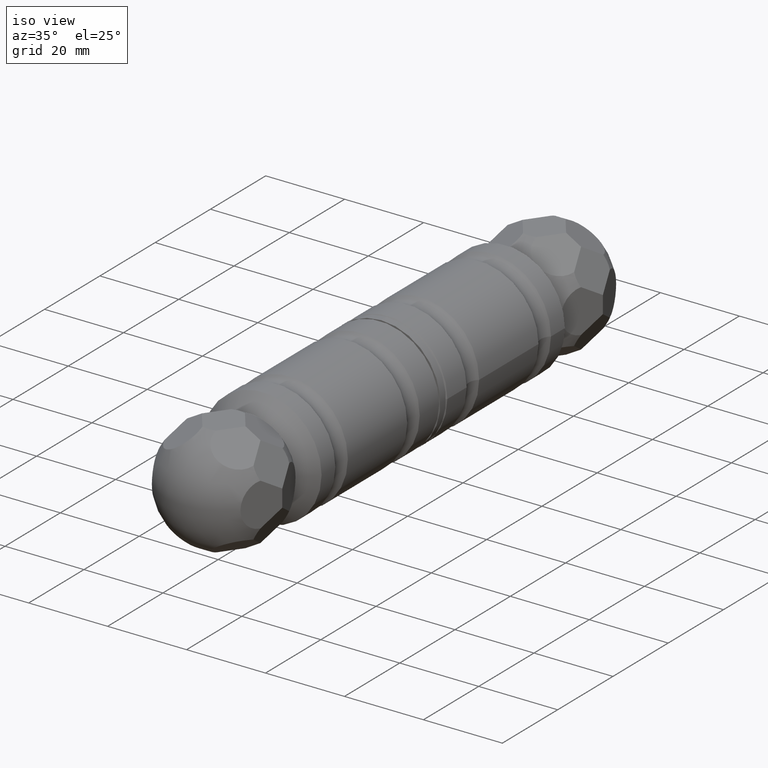
[diagram: clean part render]
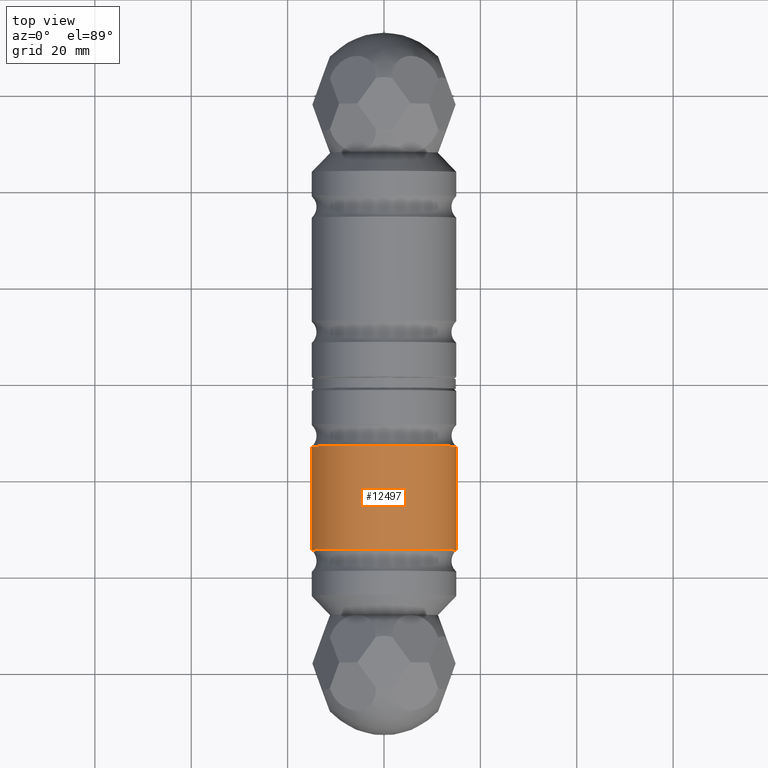
[diagram: tour spotlight — one face highlighted and labeled with its STEP entity id]
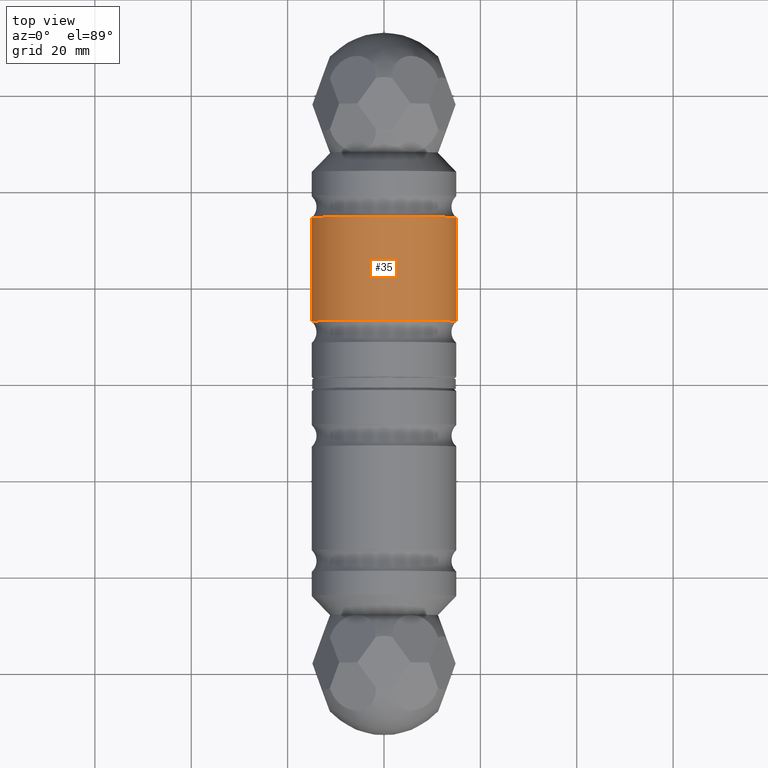
[diagram: tour spotlight — one face highlighted and labeled with its STEP entity id]
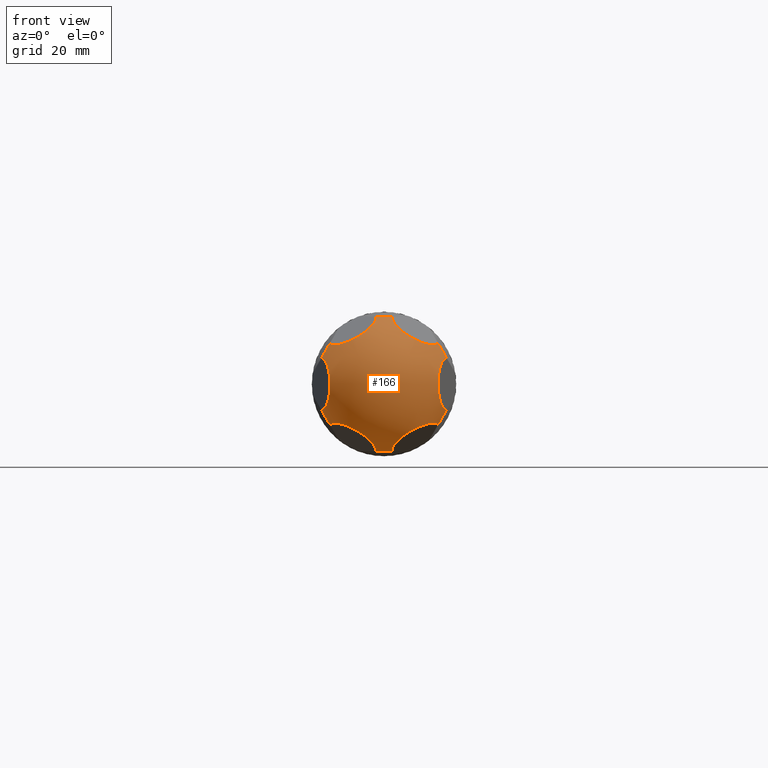
[diagram: tour spotlight — one face highlighted and labeled with its STEP entity id]
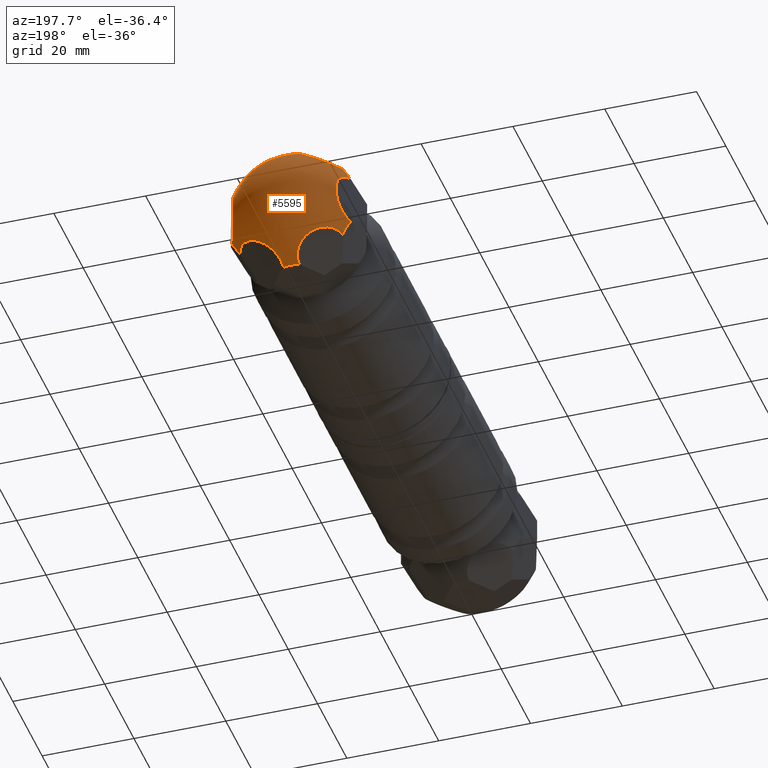
[diagram: tour spotlight — one face highlighted and labeled with its STEP entity id]
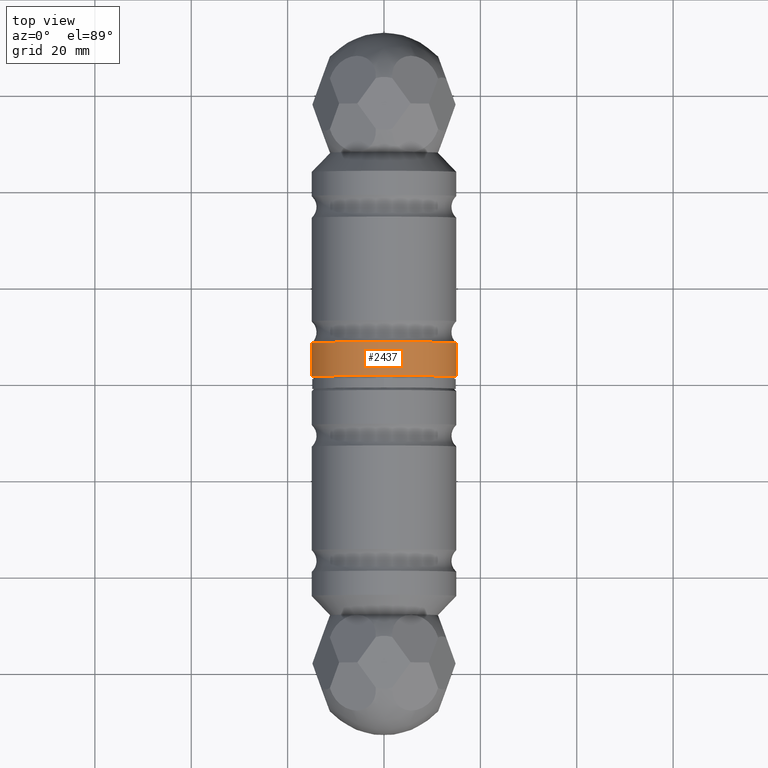
[diagram: tour spotlight — one face highlighted and labeled with its STEP entity id]
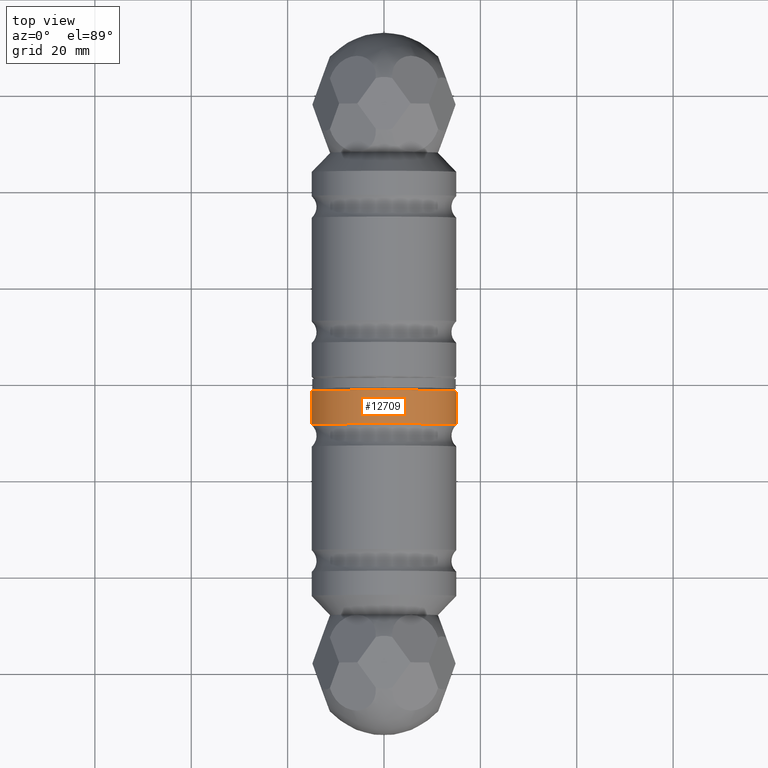
[diagram: tour spotlight — one face highlighted and labeled with its STEP entity id]
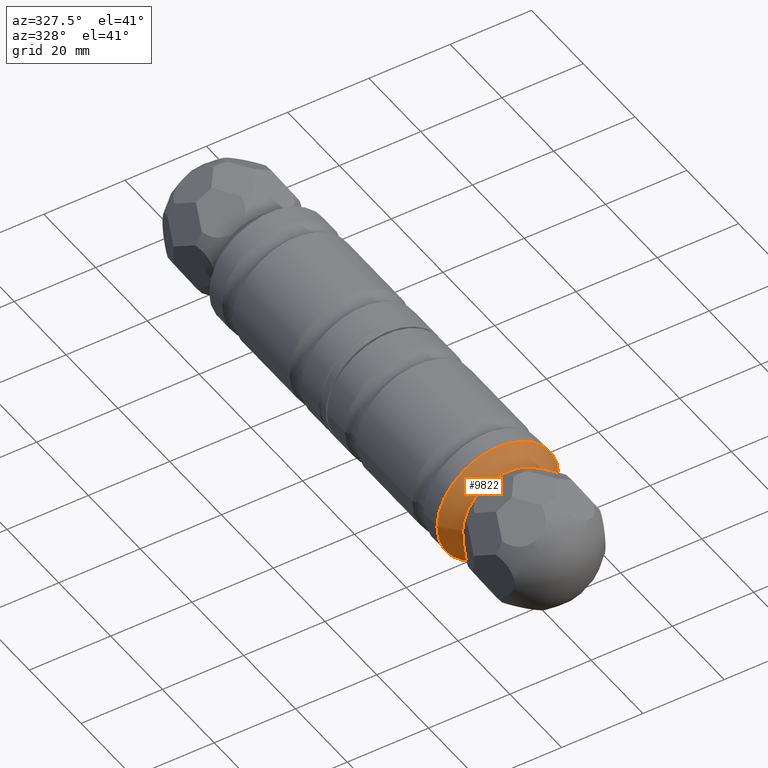
[diagram: tour spotlight — one face highlighted and labeled with its STEP entity id]
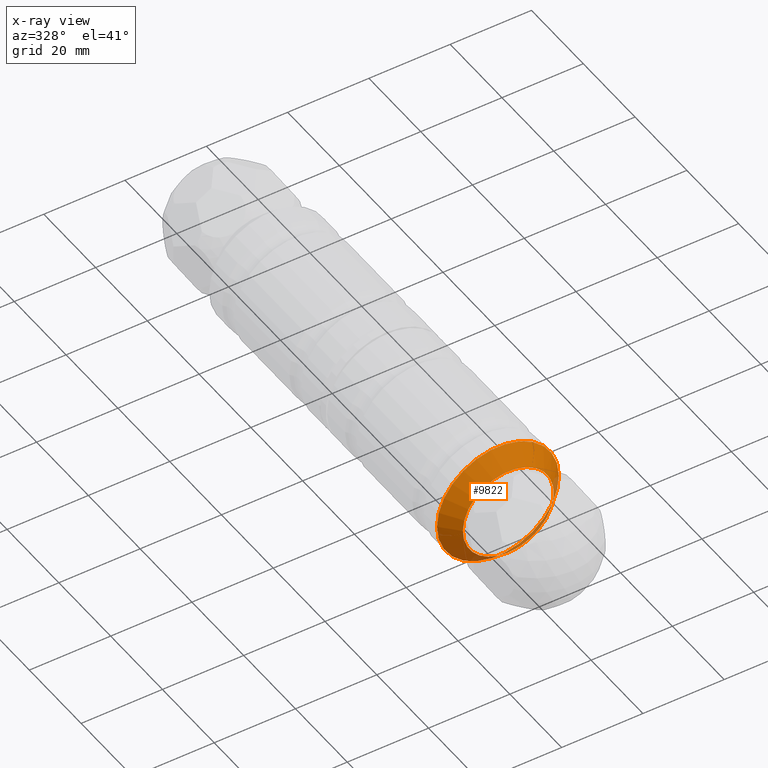
[diagram: x-ray of the same camera — body ghosted, this tour face saturated]
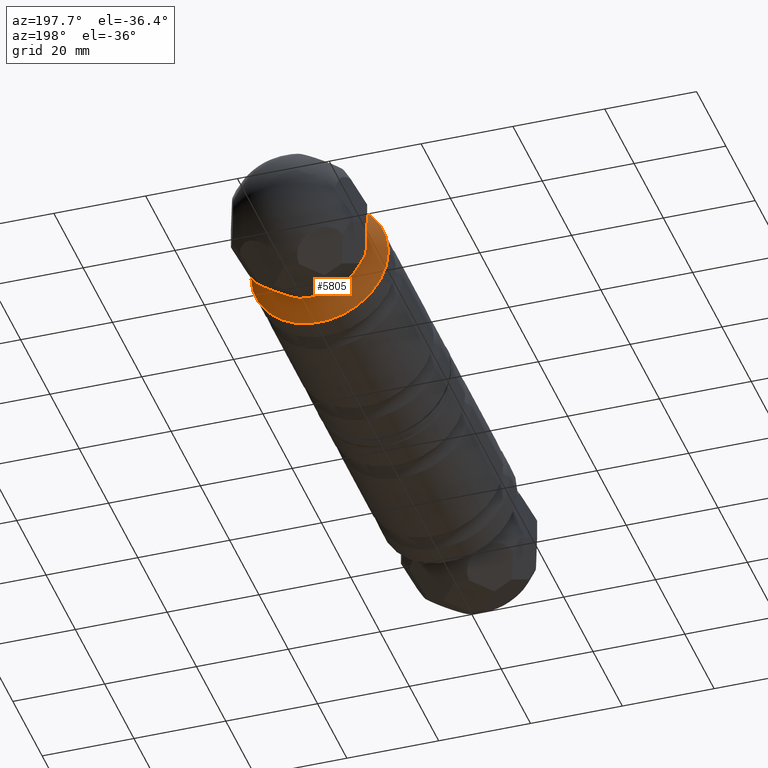
[diagram: tour spotlight — one face highlighted and labeled with its STEP entity id]
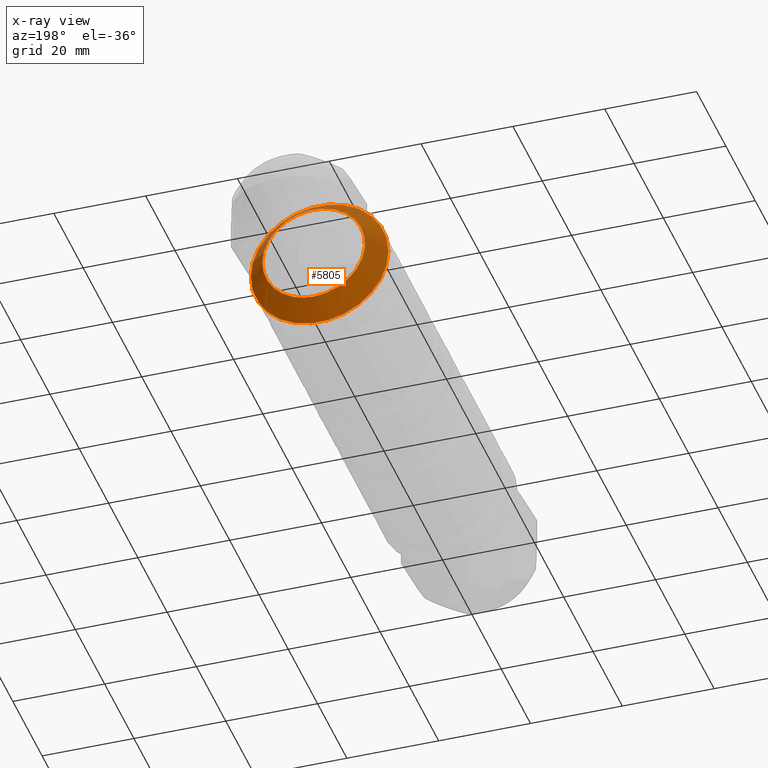
[diagram: x-ray of the same camera — body ghosted, this tour face saturated]
A machine part: a face-by-face anatomy tour. The part has 304 B-rep faces; the first image is the clean iso view, then the 8 largest visible faces are spotlighted one at a time (largest first), each with its STEP entity span.

Face 1 — top view, entity #12497. In plain terms, the highlighted cylindrical surface (bore or boss wall) has radius 15 mm, axis along (-0, 1, -0).
Definition (entity closure, byte-faithful):
#167 = ORIENTED_EDGE ( 'NONE', *, *, #9280, .F. ) ;
#284 = CARTESIAN_POINT ( 'NONE',  ( 15.00000000000000178, 33.50000000000000000, -6.842277657836020854E-46 ) ) ;
#302 = AXIS2_PLACEMENT_3D ( 'NONE', #11553, #9381, #9469 ) ;
#2013 = CARTESIAN_POINT ( 'NONE',  ( 0.000000000000000000, 0.000000000000000000, 0.000000000000000000 ) ) ;
#2730 = VERTEX_POINT ( 'NONE', #284 ) ;
#2740 = AXIS2_PLACEMENT_3D ( 'NONE', #2013, #6076, #5169 ) ;
#3245 = CARTESIAN_POINT ( 'NONE',  ( -7.534763043796792204E-17, 11.99999999999999645, 0.000000000000000000 ) ) ;
#3288 = DIRECTION ( 'NONE',  ( 1.000000000000000000, 0.000000000000000000, 0.000000000000000000 ) ) ;
#3424 = AXIS2_PLACEMENT_3D ( 'NONE', #3245, #7358, #3288 ) ;
#3878 = FACE_OUTER_BOUND ( 'NONE', #12269, .T. ) ;
#3899 = EDGE_LOOP ( 'NONE', ( #167 ) ) ;
#4659 = EDGE_CURVE ( 'NONE', #2730, #2730, #10946, .T. ) ;
#5169 = DIRECTION ( 'NONE',  ( 1.000000000000000000, 6.278969203164007883E-18, 0.000000000000000000 ) ) ;
#6076 = DIRECTION ( 'NONE',  ( 6.278969203164131143E-18, -1.000000000000000000, 0.000000000000000000 ) ) ;
#6162 = FACE_OUTER_BOUND ( 'NONE', #3899, .T. ) ;
#7358 = DIRECTION ( 'NONE',  ( 6.278969203164131143E-18, -1.000000000000000000, 0.000000000000000000 ) ) ;
#7462 = VERTEX_POINT ( 'NONE', #10785 ) ;
#8697 = CIRCLE ( 'NONE', #3424, 15.00000000000000000 ) ;
#9059 = ORIENTED_EDGE ( 'NONE', *, *, #4659, .T. ) ;
#9280 = EDGE_CURVE ( 'NONE', #7462, #7462, #8697, .T. ) ;
#9381 = DIRECTION ( 'NONE',  ( 6.278969203164131143E-18, -1.000000000000000000, 0.000000000000000000 ) ) ;
#9469 = DIRECTION ( 'NONE',  ( 1.000000000000000000, 0.000000000000000000, 0.000000000000000000 ) ) ;
#10785 = CARTESIAN_POINT ( 'NONE',  ( 15.00000000000000000, 11.99999999999999645, 0.000000000000000000 ) ) ;
#10946 = CIRCLE ( 'NONE', #302, 15.00000000000000178 ) ;
#11553 = CARTESIAN_POINT ( 'NONE',  ( -2.103454683059982762E-16, 33.50000000000000000, -6.842277657836020854E-46 ) ) ;
#12178 = CYLINDRICAL_SURFACE ( 'NONE', #2740, 15.00000000000000000 ) ;
#12269 = EDGE_LOOP ( 'NONE', ( #9059 ) ) ;
#12497 = ADVANCED_FACE ( 'NONE', ( #3878, #6162 ), #12178, .T. ) ;

Face 2 — top view, entity #35. In plain terms, the highlighted cylindrical surface (bore or boss wall) has radius 15 mm, axis along (0, -1, 0).
Definition (entity closure, byte-faithful):
#35 = ADVANCED_FACE ( 'NONE', ( #6120, #5633 ), #878, .T. ) ;
#869 = EDGE_LOOP ( 'NONE', ( #8316 ) ) ;
#878 = CYLINDRICAL_SURFACE ( 'NONE', #4819, 15.00000000000000178 ) ;
#2386 = VERTEX_POINT ( 'NONE', #8663 ) ;
#2646 = DIRECTION ( 'NONE',  ( 1.000000000000000000, 0.000000000000000000, 0.000000000000000000 ) ) ;
#2847 = EDGE_CURVE ( 'NONE', #2386, #2386, #5754, .T. ) ;
#2880 = CARTESIAN_POINT ( 'NONE',  ( 0.000000000000000000, 0.000000000000000000, 0.000000000000000000 ) ) ;
#3914 = DIRECTION ( 'NONE',  ( 1.000000000000000000, 6.278969203164064121E-18, 0.000000000000000000 ) ) ;
#4523 = CIRCLE ( 'NONE', #12664, 15.00000000000000355 ) ;
#4819 = AXIS2_PLACEMENT_3D ( 'NONE', #2880, #12203, #3914 ) ;
#5599 = CARTESIAN_POINT ( 'NONE',  ( -2.103454683059951947E-16, 33.50000000000000000, 0.000000000000000000 ) ) ;
#5633 = FACE_OUTER_BOUND ( 'NONE', #869, .T. ) ;
#5737 = CARTESIAN_POINT ( 'NONE',  ( 15.00000000000000355, 33.50000000000000000, 0.000000000000000000 ) ) ;
#5754 = CIRCLE ( 'NONE', #11848, 15.00000000000000000 ) ;
#5978 = VERTEX_POINT ( 'NONE', #5737 ) ;
#6120 = FACE_OUTER_BOUND ( 'NONE', #6369, .T. ) ;
#6369 = EDGE_LOOP ( 'NONE', ( #12987 ) ) ;
#7076 = DIRECTION ( 'NONE',  ( 6.278969203164064121E-18, -1.000000000000000000, -0.000000000000000000 ) ) ;
#8141 = DIRECTION ( 'NONE',  ( 1.000000000000000000, 0.000000000000000000, 0.000000000000000000 ) ) ;
#8316 = ORIENTED_EDGE ( 'NONE', *, *, #2847, .F. ) ;
#8663 = CARTESIAN_POINT ( 'NONE',  ( 15.00000000000000000, 11.99999999999999645, 0.000000000000000000 ) ) ;
#10175 = CARTESIAN_POINT ( 'NONE',  ( -7.534763043796792204E-17, 11.99999999999999645, 0.000000000000000000 ) ) ;
#10942 = EDGE_CURVE ( 'NONE', #5978, #5978, #4523, .T. ) ;
#11848 = AXIS2_PLACEMENT_3D ( 'NONE', #10175, #7076, #8141 ) ;
#11883 = DIRECTION ( 'NONE',  ( 6.278969203164064121E-18, -1.000000000000000000, -0.000000000000000000 ) ) ;
#12203 = DIRECTION ( 'NONE',  ( 6.278969203164064121E-18, -1.000000000000000000, -0.000000000000000000 ) ) ;
#12664 = AXIS2_PLACEMENT_3D ( 'NONE', #5599, #11883, #2646 ) ;
#12987 = ORIENTED_EDGE ( 'NONE', *, *, #10942, .T. ) ;

Face 3 — front view, entity #166. In plain terms, the highlighted spherical surface has radius 15 mm.
Definition (entity closure, byte-faithful):
#166 = ADVANCED_FACE ( 'NONE', ( #6608 ), #4834, .T. ) ;
#390 = CIRCLE ( 'NONE', #4371, 5.513392784846703698 ) ;
#431 = CARTESIAN_POINT ( 'NONE',  ( 12.08105438279296528, 56.99999999999999289, -6.974999999999931255 ) ) ;
#720 = DIRECTION ( 'NONE',  ( -0.4698463103929521045, -0.3420201433256697121, -0.8137976813493744688 ) ) ;
#783 = VERTEX_POINT ( 'NONE', #2110 ) ;
#803 = CARTESIAN_POINT ( 'NONE',  ( 6.554356029981684095, 61.77118099939310270, 11.35247765482377602 ) ) ;
#917 = CARTESIAN_POINT ( 'NONE',  ( -3.081487911019577365E-30, 56.99999999999999289, 0.000000000000000000 ) ) ;
#1169 = CIRCLE ( 'NONE', #4661, 5.513392784846722350 ) ;
#1393 = EDGE_CURVE ( 'NONE', #9751, #10270, #1860, .T. ) ;
#1556 = EDGE_CURVE ( 'NONE', #12498, #3024, #1845, .T. ) ;
#1768 = ORIENTED_EDGE ( 'NONE', *, *, #7108, .T. ) ;
#1814 = CARTESIAN_POINT ( 'NONE',  ( 13.10871205996341793, 61.77118099939310270, -2.996431540116346828E-34 ) ) ;
#1845 = CIRCLE ( 'NONE', #8219, 5.513392784846712580 ) ;
#1860 = CIRCLE ( 'NONE', #11963, 5.513392784846711692 ) ;
#2083 = EDGE_CURVE ( 'NONE', #9684, #10657, #10487, .T. ) ;
#2110 = CARTESIAN_POINT ( 'NONE',  ( -1.713864669725796652, 62.24024502231199563, 13.94999999999999574 ) ) ;
#2345 = CARTESIAN_POINT ( 'NONE',  ( 11.22412204793004342, 62.24024502231203826, 8.459250342631110087 ) ) ;
#2416 = CARTESIAN_POINT ( 'NONE',  ( -12.08105438279281607, 56.99999999999999289, -6.975000000000185274 ) ) ;
#2504 = DIRECTION ( 'NONE',  ( -0.8660254037844310471, 8.938567588209319741E-32, -0.5000000000000132117 ) ) ;
#2651 = EDGE_LOOP ( 'NONE', ( #9907, #1768, #8550, #6107, #10135, #5492, #10708, #4681, #7321, #3636, #10934, #10664 ) ) ;
#2723 = AXIS2_PLACEMENT_3D ( 'NONE', #917, #12522, #12381 ) ;
#2949 = CARTESIAN_POINT ( 'NONE',  ( -11.22412204793010737, 62.24024502231198852, 8.459250342631056796 ) ) ;
#3024 = VERTEX_POINT ( 'NONE', #10783 ) ;
#3222 = AXIS2_PLACEMENT_3D ( 'NONE', #803, #720, #5986 ) ;
#3229 = CARTESIAN_POINT ( 'NONE',  ( -1.713864669725566836, 62.24024502231198852, -13.95000000000003304 ) ) ;
#3281 = CIRCLE ( 'NONE', #6728, 5.513392784846712580 ) ;
#3384 = DIRECTION ( 'NONE',  ( -1.000000000000000000, 5.034209732329221732E-15, -1.069769568119959500E-14 ) ) ;
#3427 = DIRECTION ( 'NONE',  ( 0.9396926207859082059, -0.3420201433256697676, -0.000000000000000000 ) ) ;
#3518 = CIRCLE ( 'NONE', #3222, 5.513392784846711692 ) ;
#3588 = EDGE_CURVE ( 'NONE', #12033, #783, #6404, .T. ) ;
#3636 = ORIENTED_EDGE ( 'NONE', *, *, #3588, .T. ) ;
#3713 = VERTEX_POINT ( 'NONE', #9284 ) ;
#4089 = AXIS2_PLACEMENT_3D ( 'NONE', #8851, #10918, #4699 ) ;
#4091 = CARTESIAN_POINT ( 'NONE',  ( 1.713864669725869039, 62.24024502231203826, -13.94999999999997442 ) ) ;
#4371 = AXIS2_PLACEMENT_3D ( 'NONE', #10110, #6102, #10070 ) ;
#4485 = DIRECTION ( 'NONE',  ( -1.060262988517024338E-14, 4.461165032909084819E-46, 1.000000000000000000 ) ) ;
#4608 = DIRECTION ( 'NONE',  ( 0.4698463103929465534, -0.3420201433256697676, 0.8137976813493779105 ) ) ;
#4642 = DIRECTION ( 'NONE',  ( -0.8660254037844417052, 6.468871966888534240E-32, 0.4999999999999948930 ) ) ;
#4661 = AXIS2_PLACEMENT_3D ( 'NONE', #11926, #4608, #10751 ) ;
#4681 = ORIENTED_EDGE ( 'NONE', *, *, #12953, .T. ) ;
#4699 = DIRECTION ( 'NONE',  ( 0.8660254037844363761, 0.000000000000000000, 0.5000000000000041078 ) ) ;
#4764 = DIRECTION ( 'NONE',  ( -0.8660254037844331565, 1.258552433082300503E-15, -0.5000000000000097700 ) ) ;
#4834 = SPHERICAL_SURFACE ( 'NONE', #2723, 14.99999999999999645 ) ;
#5004 = CARTESIAN_POINT ( 'NONE',  ( 11.22412204793016244, 62.24024502231202405, -8.459250342630953767 ) ) ;
#5021 = CIRCLE ( 'NONE', #5333, 5.513392784846710803 ) ;
#5244 = EDGE_CURVE ( 'NONE', #12033, #10476, #3281, .T. ) ;
#5297 = CARTESIAN_POINT ( 'NONE',  ( -12.93798671765576636, 62.24024502231203826, 5.490749657368912295 ) ) ;
#5333 = AXIS2_PLACEMENT_3D ( 'NONE', #5759, #6817, #4764 ) ;
#5492 = ORIENTED_EDGE ( 'NONE', *, *, #8205, .T. ) ;
#5587 = DIRECTION ( 'NONE',  ( -0.4999999999999948375, 1.258552433082300108E-15, -0.8660254037844415942 ) ) ;
#5759 = CARTESIAN_POINT ( 'NONE',  ( 6.554356029981841303, 61.77118099939310270, -11.35247765482368543 ) ) ;
#5965 = EDGE_CURVE ( 'NONE', #10303, #12375, #3518, .T. ) ;
#5986 = DIRECTION ( 'NONE',  ( 0.8660254037844398178, 0.000000000000000000, -0.4999999999999980571 ) ) ;
#6102 = DIRECTION ( 'NONE',  ( 0.8660254037844345998, -8.938567588209330689E-32, 0.5000000000000072164 ) ) ;
#6107 = ORIENTED_EDGE ( 'NONE', *, *, #13357, .T. ) ;
#6318 = EDGE_CURVE ( 'NONE', #3713, #12375, #390, .T. ) ;
#6399 = CARTESIAN_POINT ( 'NONE',  ( 1.713864669725678080, 62.24024502231196010, 13.95000000000002238 ) ) ;
#6404 = CIRCLE ( 'NONE', #4089, 5.513392784846696593 ) ;
#6608 = FACE_OUTER_BOUND ( 'NONE', #2651, .T. ) ;
#6650 = DIRECTION ( 'NONE',  ( 0.5000000000000132117, 3.775657299246896577E-15, -0.8660254037844309360 ) ) ;
#6667 = AXIS2_PLACEMENT_3D ( 'NONE', #7740, #4485, #3384 ) ;
#6728 = AXIS2_PLACEMENT_3D ( 'NONE', #13024, #4642, #5587 ) ;
#6817 = DIRECTION ( 'NONE',  ( -0.4698463103929634843, -0.3420201433256697121, 0.8137976813493679185 ) ) ;
#7108 = EDGE_CURVE ( 'NONE', #3713, #3024, #11473, .T. ) ;
#7321 = ORIENTED_EDGE ( 'NONE', *, *, #5244, .F. ) ;
#7494 = CARTESIAN_POINT ( 'NONE',  ( 2.462530179769826647E-13, 56.99999999999999289, -13.95000000000000462 ) ) ;
#7740 = CARTESIAN_POINT ( 'NONE',  ( -1.479066868981249828E-13, 56.99999999999999289, 13.95000000000001350 ) ) ;
#7980 = CIRCLE ( 'NONE', #11349, 5.513392784846719685 ) ;
#7991 = AXIS2_PLACEMENT_3D ( 'NONE', #2416, #2504, #6650 ) ;
#8205 = EDGE_CURVE ( 'NONE', #9751, #10657, #1169, .T. ) ;
#8219 = AXIS2_PLACEMENT_3D ( 'NONE', #431, #10707, #9753 ) ;
#8223 = AXIS2_PLACEMENT_3D ( 'NONE', #1814, #10155, #13261 ) ;
#8305 = CARTESIAN_POINT ( 'NONE',  ( -12.93798671765579478, 62.24024502231196010, -5.490749657368923842 ) ) ;
#8550 = ORIENTED_EDGE ( 'NONE', *, *, #1556, .F. ) ;
#8851 = CARTESIAN_POINT ( 'NONE',  ( -6.554356029981765808, 61.77118099939310270, 11.35247765482373694 ) ) ;
#9284 = CARTESIAN_POINT ( 'NONE',  ( 12.93798671765579122, 62.24024502231196010, 5.490749657368919401 ) ) ;
#9377 = EDGE_CURVE ( 'NONE', #10303, #783, #9817, .T. ) ;
#9527 = DIRECTION ( 'NONE',  ( 1.000000000000000000, -1.258552433082300305E-15, 1.761973406315220506E-14 ) ) ;
#9684 = VERTEX_POINT ( 'NONE', #8305 ) ;
#9751 = VERTEX_POINT ( 'NONE', #3229 ) ;
#9753 = DIRECTION ( 'NONE',  ( 0.4999999999999948375, 0.000000000000000000, 0.8660254037844415942 ) ) ;
#9760 = DIRECTION ( 'NONE',  ( -0.3420201433256695456, -0.9396926207859079838, 0.000000000000000000 ) ) ;
#9817 = CIRCLE ( 'NONE', #6667, 5.513392784846689487 ) ;
#9907 = ORIENTED_EDGE ( 'NONE', *, *, #6318, .F. ) ;
#10070 = DIRECTION ( 'NONE',  ( -0.5000000000000072164, -3.775657299246906044E-15, 0.8660254037844344888 ) ) ;
#10110 = CARTESIAN_POINT ( 'NONE',  ( 12.08105438279286759, 56.99999999999999289, 6.975000000000103562 ) ) ;
#10135 = ORIENTED_EDGE ( 'NONE', *, *, #1393, .F. ) ;
#10155 = DIRECTION ( 'NONE',  ( -0.9396926207859082059, -0.3420201433256697676, -0.000000000000000000 ) ) ;
#10270 = VERTEX_POINT ( 'NONE', #4091 ) ;
#10303 = VERTEX_POINT ( 'NONE', #6399 ) ;
#10476 = VERTEX_POINT ( 'NONE', #5297 ) ;
#10487 = CIRCLE ( 'NONE', #7991, 5.513392784846717909 ) ;
#10657 = VERTEX_POINT ( 'NONE', #12080 ) ;
#10664 = ORIENTED_EDGE ( 'NONE', *, *, #5965, .T. ) ;
#10707 = DIRECTION ( 'NONE',  ( 0.8660254037844417052, -6.468871966888534240E-32, -0.4999999999999948930 ) ) ;
#10708 = ORIENTED_EDGE ( 'NONE', *, *, #2083, .F. ) ;
#10751 = DIRECTION ( 'NONE',  ( -0.8660254037844432595, 0.000000000000000000, 0.4999999999999920064 ) ) ;
#10762 = CARTESIAN_POINT ( 'NONE',  ( -13.10871205996341793, 61.77118099939310270, 7.223520691251005368E-33 ) ) ;
#10783 = CARTESIAN_POINT ( 'NONE',  ( 12.93798671765576636, 62.24024502231203826, -5.490749657368912295 ) ) ;
#10918 = DIRECTION ( 'NONE',  ( 0.4698463103929578777, -0.3420201433256697121, -0.8137976813493713601 ) ) ;
#10934 = ORIENTED_EDGE ( 'NONE', *, *, #9377, .F. ) ;
#11349 = AXIS2_PLACEMENT_3D ( 'NONE', #10762, #3427, #9760 ) ;
#11473 = CIRCLE ( 'NONE', #8223, 5.513392784846719685 ) ;
#11655 = DIRECTION ( 'NONE',  ( 1.765254609153998899E-14, -8.812853623292794860E-46, -1.000000000000000000 ) ) ;
#11926 = CARTESIAN_POINT ( 'NONE',  ( -6.554356029981603271, 61.77118099939308848, -11.35247765482382043 ) ) ;
#11963 = AXIS2_PLACEMENT_3D ( 'NONE', #7494, #11655, #9527 ) ;
#12033 = VERTEX_POINT ( 'NONE', #2949 ) ;
#12080 = CARTESIAN_POINT ( 'NONE',  ( -11.22412204792999013, 62.24024502231203826, -8.459250342631172259 ) ) ;
#12375 = VERTEX_POINT ( 'NONE', #2345 ) ;
#12381 = DIRECTION ( 'NONE',  ( 1.000000000000000000, 0.000000000000000000, 0.000000000000000000 ) ) ;
#12498 = VERTEX_POINT ( 'NONE', #5004 ) ;
#12522 = DIRECTION ( 'NONE',  ( -0.000000000000000000, 0.000000000000000000, 1.000000000000000000 ) ) ;
#12953 = EDGE_CURVE ( 'NONE', #9684, #10476, #7980, .T. ) ;
#13024 = CARTESIAN_POINT ( 'NONE',  ( -12.08105438279296528, 56.99999999999999289, 6.974999999999931255 ) ) ;
#13261 = DIRECTION ( 'NONE',  ( -0.3420201433256695456, 0.9396926207859079838, -3.552713678800499746E-15 ) ) ;
#13357 = EDGE_CURVE ( 'NONE', #12498, #10270, #5021, .T. ) ;

Face 4 — auxiliary view, entity #5595. In plain terms, the highlighted spherical surface has radius 15 mm.
Definition (entity closure, byte-faithful):
#71 = DIRECTION ( 'NONE',  ( 1.765254609153998899E-14, -0.000000000000000000, -1.000000000000000000 ) ) ;
#150 = VERTEX_POINT ( 'NONE', #11369 ) ;
#206 = CIRCLE ( 'NONE', #11774, 5.513392784846736561 ) ;
#289 = ORIENTED_EDGE ( 'NONE', *, *, #9174, .F. ) ;
#509 = EDGE_CURVE ( 'NONE', #5046, #12373, #206, .T. ) ;
#674 = AXIS2_PLACEMENT_3D ( 'NONE', #11818, #2397, #4408 ) ;
#810 = CIRCLE ( 'NONE', #11417, 5.513392784846741890 ) ;
#1016 = CIRCLE ( 'NONE', #7805, 5.513392784846689487 ) ;
#1061 = VERTEX_POINT ( 'NONE', #8452 ) ;
#1139 = EDGE_CURVE ( 'NONE', #5046, #11826, #1016, .T. ) ;
#1339 = CIRCLE ( 'NONE', #11429, 5.513392784846712580 ) ;
#1464 = DIRECTION ( 'NONE',  ( 0.8660254037844345998, -0.000000000000000000, 0.5000000000000072164 ) ) ;
#1806 = CARTESIAN_POINT ( 'NONE',  ( -13.10871205996340905, 61.77118099939308848, 0.000000000000000000 ) ) ;
#1829 = DIRECTION ( 'NONE',  ( -1.000000000000000000, 5.034209732329221732E-15, -1.069769568119959500E-14 ) ) ;
#1855 = EDGE_CURVE ( 'NONE', #1061, #3869, #1339, .T. ) ;
#2099 = EDGE_CURVE ( 'NONE', #6992, #10066, #2510, .T. ) ;
#2288 = EDGE_CURVE ( 'NONE', #9703, #3869, #4125, .T. ) ;
#2397 = DIRECTION ( 'NONE',  ( -0.4698463103929635953, -0.3420201433256697676, 0.8137976813493680295 ) ) ;
#2450 = ORIENTED_EDGE ( 'NONE', *, *, #1139, .F. ) ;
#2464 = VERTEX_POINT ( 'NONE', #5488 ) ;
#2510 = CIRCLE ( 'NONE', #2637, 5.513392784846735672 ) ;
#2512 = EDGE_CURVE ( 'NONE', #4696, #10066, #5259, .T. ) ;
#2614 = CARTESIAN_POINT ( 'NONE',  ( -1.713864669725766454, 62.24024502231200984, 13.94999999999999751 ) ) ;
#2626 = CARTESIAN_POINT ( 'NONE',  ( 12.93798671765577524, 62.24024502231197431, 5.490749657368947823 ) ) ;
#2637 = AXIS2_PLACEMENT_3D ( 'NONE', #11974, #10964, #10921 ) ;
#2649 = CARTESIAN_POINT ( 'NONE',  ( 12.93798671765574859, 62.24024502231203826, -5.490749657368940717 ) ) ;
#3303 = CARTESIAN_POINT ( 'NONE',  ( 11.22412204793006119, 62.24024502231202405, 8.459250342631090547 ) ) ;
#3530 = CARTESIAN_POINT ( 'NONE',  ( 12.08105438279296528, 56.99999999999999289, -6.974999999999931255 ) ) ;
#3709 = CARTESIAN_POINT ( 'NONE',  ( 12.08105438279286759, 56.99999999999999289, 6.975000000000103562 ) ) ;
#3753 = DIRECTION ( 'NONE',  ( -0.4698463103929521045, -0.3420201433256697121, -0.8137976813493744688 ) ) ;
#3821 = CARTESIAN_POINT ( 'NONE',  ( -12.08105438279296528, 56.99999999999999289, 6.974999999999931255 ) ) ;
#3869 = VERTEX_POINT ( 'NONE', #7318 ) ;
#3898 = CARTESIAN_POINT ( 'NONE',  ( -6.554356029981598830, 61.77118099939308848, -11.35247765482381332 ) ) ;
#3905 = DIRECTION ( 'NONE',  ( -0.3420201433256697121, -0.9396926207859080948, 0.000000000000000000 ) ) ;
#4069 = EDGE_CURVE ( 'NONE', #1061, #11826, #9040, .T. ) ;
#4125 = CIRCLE ( 'NONE', #5161, 5.513392784846741890 ) ;
#4136 = ORIENTED_EDGE ( 'NONE', *, *, #11797, .F. ) ;
#4408 = DIRECTION ( 'NONE',  ( -0.8660254037844329345, 0.000000000000000000, -0.5000000000000101030 ) ) ;
#4507 = SPHERICAL_SURFACE ( 'NONE', #7509, 14.99999999999999645 ) ;
#4696 = VERTEX_POINT ( 'NONE', #5229 ) ;
#4771 = CARTESIAN_POINT ( 'NONE',  ( -6.554356029981761367, 61.77118099939308848, 11.35247765482372806 ) ) ;
#4817 = DIRECTION ( 'NONE',  ( 0.4698463103929578777, -0.3420201433256697121, -0.8137976813493712491 ) ) ;
#4876 = CARTESIAN_POINT ( 'NONE',  ( 1.713864669725651435, 62.24024502231196010, 13.95000000000002771 ) ) ;
#5046 = VERTEX_POINT ( 'NONE', #4876 ) ;
#5058 = AXIS2_PLACEMENT_3D ( 'NONE', #3530, #5573, #5628 ) ;
#5089 = DIRECTION ( 'NONE',  ( 0.9396926207859079838, -0.3420201433256697121, -0.000000000000000000 ) ) ;
#5161 = AXIS2_PLACEMENT_3D ( 'NONE', #1806, #5089, #3905 ) ;
#5229 = CARTESIAN_POINT ( 'NONE',  ( 11.22412204793018020, 62.24024502231203826, -8.459250342630921793 ) ) ;
#5259 = CIRCLE ( 'NONE', #5058, 5.513392784846712580 ) ;
#5343 = EDGE_LOOP ( 'NONE', ( #10434, #5474, #11787, #13267, #4136, #11140, #289, #7482, #11233, #10369, #2450, #10541 ) ) ;
#5344 = EDGE_CURVE ( 'NONE', #150, #8186, #810, .T. ) ;
#5474 = ORIENTED_EDGE ( 'NONE', *, *, #2099, .T. ) ;
#5488 = CARTESIAN_POINT ( 'NONE',  ( 1.713864669725830181, 62.24024502231203826, -13.94999999999997264 ) ) ;
#5573 = DIRECTION ( 'NONE',  ( 0.8660254037844417052, -0.000000000000000000, -0.4999999999999948930 ) ) ;
#5578 = AXIS2_PLACEMENT_3D ( 'NONE', #3709, #1464, #7846 ) ;
#5595 = ADVANCED_FACE ( 'NONE', ( #8588 ), #4507, .T. ) ;
#5628 = DIRECTION ( 'NONE',  ( 0.4999999999999948375, 1.258552433082300108E-15, 0.8660254037844415942 ) ) ;
#5672 = EDGE_CURVE ( 'NONE', #6992, #12373, #12322, .T. ) ;
#6264 = CARTESIAN_POINT ( 'NONE',  ( -12.08105438279281607, 56.99999999999999289, -6.975000000000185274 ) ) ;
#6370 = CARTESIAN_POINT ( 'NONE',  ( -12.93798671765578767, 62.24024502231193168, -5.490749657368950487 ) ) ;
#6581 = DIRECTION ( 'NONE',  ( 1.000000000000000000, 0.000000000000000000, 0.000000000000000000 ) ) ;
#6750 = CARTESIAN_POINT ( 'NONE',  ( -11.22412204792999901, 62.24024502231205247, -8.459250342631154496 ) ) ;
#6868 = CARTESIAN_POINT ( 'NONE',  ( -1.479066868981250081E-13, 56.99999999999999289, 13.95000000000001350 ) ) ;
#6917 = DIRECTION ( 'NONE',  ( 0.8660254037844399289, 0.000000000000000000, -0.4999999999999980016 ) ) ;
#6992 = VERTEX_POINT ( 'NONE', #2626 ) ;
#7074 = DIRECTION ( 'NONE',  ( -1.060262988517024338E-14, -0.000000000000000000, 1.000000000000000000 ) ) ;
#7318 = CARTESIAN_POINT ( 'NONE',  ( -12.93798671765574859, 62.24024502231203826, 5.490749657368940717 ) ) ;
#7395 = DIRECTION ( 'NONE',  ( 1.000000000000000000, 1.258552433082300305E-15, 1.761973406315220506E-14 ) ) ;
#7482 = ORIENTED_EDGE ( 'NONE', *, *, #2288, .T. ) ;
#7509 = AXIS2_PLACEMENT_3D ( 'NONE', #12836, #9410, #6581 ) ;
#7752 = DIRECTION ( 'NONE',  ( -0.8660254037844310471, -0.000000000000000000, -0.5000000000000132117 ) ) ;
#7805 = AXIS2_PLACEMENT_3D ( 'NONE', #6868, #7074, #1829 ) ;
#7846 = DIRECTION ( 'NONE',  ( -0.5000000000000072164, 0.000000000000000000, 0.8660254037844344888 ) ) ;
#8186 = VERTEX_POINT ( 'NONE', #6750 ) ;
#8208 = DIRECTION ( 'NONE',  ( -0.4999999999999948375, 1.258552433082300108E-15, -0.8660254037844415942 ) ) ;
#8452 = CARTESIAN_POINT ( 'NONE',  ( -11.22412204793012513, 62.24024502231198852, 8.459250342631033703 ) ) ;
#8588 = FACE_OUTER_BOUND ( 'NONE', #5343, .T. ) ;
#9020 = DIRECTION ( 'NONE',  ( -0.8660254037844432595, 0.000000000000000000, 0.4999999999999918399 ) ) ;
#9040 = CIRCLE ( 'NONE', #13353, 5.513392784846725014 ) ;
#9113 = AXIS2_PLACEMENT_3D ( 'NONE', #6264, #7752, #10126 ) ;
#9174 = EDGE_CURVE ( 'NONE', #9703, #8186, #10965, .T. ) ;
#9410 = DIRECTION ( 'NONE',  ( 0.000000000000000000, 0.000000000000000000, 1.000000000000000000 ) ) ;
#9442 = CARTESIAN_POINT ( 'NONE',  ( 2.462530179769829171E-13, 56.99999999999999289, -13.95000000000000462 ) ) ;
#9703 = VERTEX_POINT ( 'NONE', #6370 ) ;
#10066 = VERTEX_POINT ( 'NONE', #2649 ) ;
#10126 = DIRECTION ( 'NONE',  ( 0.5000000000000132117, 1.258552433082298925E-15, -0.8660254037844309360 ) ) ;
#10369 = ORIENTED_EDGE ( 'NONE', *, *, #4069, .T. ) ;
#10434 = ORIENTED_EDGE ( 'NONE', *, *, #5672, .F. ) ;
#10541 = ORIENTED_EDGE ( 'NONE', *, *, #509, .T. ) ;
#10739 = CIRCLE ( 'NONE', #11238, 5.513392784846711692 ) ;
#10921 = DIRECTION ( 'NONE',  ( -0.3420201433256701007, 0.9396926207859078728, 0.000000000000000000 ) ) ;
#10947 = DIRECTION ( 'NONE',  ( 0.8660254037844365982, 1.258552433082297347E-15, 0.5000000000000034417 ) ) ;
#10964 = DIRECTION ( 'NONE',  ( -0.9396926207859079838, -0.3420201433256697121, -0.000000000000000000 ) ) ;
#10965 = CIRCLE ( 'NONE', #9113, 5.513392784846717909 ) ;
#11129 = CIRCLE ( 'NONE', #674, 5.513392784846745442 ) ;
#11140 = ORIENTED_EDGE ( 'NONE', *, *, #5344, .T. ) ;
#11233 = ORIENTED_EDGE ( 'NONE', *, *, #1855, .F. ) ;
#11238 = AXIS2_PLACEMENT_3D ( 'NONE', #9442, #71, #7395 ) ;
#11278 = DIRECTION ( 'NONE',  ( -0.8660254037844417052, -0.000000000000000000, 0.4999999999999948930 ) ) ;
#11364 = EDGE_CURVE ( 'NONE', #4696, #2464, #11129, .T. ) ;
#11369 = CARTESIAN_POINT ( 'NONE',  ( -1.713864669725547962, 62.24024502231196010, -13.95000000000004015 ) ) ;
#11417 = AXIS2_PLACEMENT_3D ( 'NONE', #3898, #12098, #9020 ) ;
#11429 = AXIS2_PLACEMENT_3D ( 'NONE', #3821, #11278, #8208 ) ;
#11774 = AXIS2_PLACEMENT_3D ( 'NONE', #13102, #3753, #6917 ) ;
#11787 = ORIENTED_EDGE ( 'NONE', *, *, #2512, .F. ) ;
#11797 = EDGE_CURVE ( 'NONE', #150, #2464, #10739, .T. ) ;
#11818 = CARTESIAN_POINT ( 'NONE',  ( 6.554356029981835974, 61.77118099939308848, -11.35247765482367477 ) ) ;
#11826 = VERTEX_POINT ( 'NONE', #2614 ) ;
#11974 = CARTESIAN_POINT ( 'NONE',  ( 13.10871205996340905, 61.77118099939308848, 0.000000000000000000 ) ) ;
#12098 = DIRECTION ( 'NONE',  ( 0.4698463103929464424, -0.3420201433256697121, 0.8137976813493776884 ) ) ;
#12322 = CIRCLE ( 'NONE', #5578, 5.513392784846703698 ) ;
#12373 = VERTEX_POINT ( 'NONE', #3303 ) ;
#12836 = CARTESIAN_POINT ( 'NONE',  ( 0.000000000000000000, 56.99999999999999289, 0.000000000000000000 ) ) ;
#13102 = CARTESIAN_POINT ( 'NONE',  ( 6.554356029981678766, 61.77118099939308848, 11.35247765482376892 ) ) ;
#13267 = ORIENTED_EDGE ( 'NONE', *, *, #11364, .T. ) ;
#13353 = AXIS2_PLACEMENT_3D ( 'NONE', #4771, #4817, #10947 ) ;

Face 5 — top view, entity #2437. In plain terms, the highlighted cylindrical surface (bore or boss wall) has radius 15 mm, axis along (0, -1, 0).
Definition (entity closure, byte-faithful):
#68 = EDGE_CURVE ( 'NONE', #9099, #9099, #5464, .T. ) ;
#834 = ORIENTED_EDGE ( 'NONE', *, *, #68, .T. ) ;
#2227 = VERTEX_POINT ( 'NONE', #6457 ) ;
#2437 = ADVANCED_FACE ( 'NONE', ( #5422, #11772 ), #11611, .T. ) ;
#2836 = DIRECTION ( 'NONE',  ( 6.278969203164064121E-18, -1.000000000000000000, -0.000000000000000000 ) ) ;
#2925 = EDGE_CURVE ( 'NONE', #2227, #2227, #7545, .T. ) ;
#3208 = CARTESIAN_POINT ( 'NONE',  ( 0.000000000000000000, 0.000000000000000000, 0.000000000000000000 ) ) ;
#4262 = DIRECTION ( 'NONE',  ( 6.278969203164064121E-18, -1.000000000000000000, -0.000000000000000000 ) ) ;
#4461 = CARTESIAN_POINT ( 'NONE',  ( 15.00000000000000178, 7.500000000000000000, 0.000000000000000000 ) ) ;
#5422 = FACE_OUTER_BOUND ( 'NONE', #6640, .T. ) ;
#5464 = CIRCLE ( 'NONE', #10123, 15.00000000000000178 ) ;
#6250 = AXIS2_PLACEMENT_3D ( 'NONE', #3208, #4262, #11540 ) ;
#6457 = CARTESIAN_POINT ( 'NONE',  ( 15.00000000000000178, 0.4999999999999866773, 0.000000000000000000 ) ) ;
#6640 = EDGE_LOOP ( 'NONE', ( #9361 ) ) ;
#7545 = CIRCLE ( 'NONE', #12727, 15.00000000000000178 ) ;
#9099 = VERTEX_POINT ( 'NONE', #4461 ) ;
#9361 = ORIENTED_EDGE ( 'NONE', *, *, #2925, .T. ) ;
#9599 = DIRECTION ( 'NONE',  ( -6.278969203164064891E-18, 1.000000000000000000, 0.000000000000000000 ) ) ;
#10123 = AXIS2_PLACEMENT_3D ( 'NONE', #13176, #2836, #11225 ) ;
#10743 = CARTESIAN_POINT ( 'NONE',  ( -3.139484601581097984E-18, 0.4999999999999865663, 0.000000000000000000 ) ) ;
#11225 = DIRECTION ( 'NONE',  ( 1.000000000000000000, 0.000000000000000000, 0.000000000000000000 ) ) ;
#11540 = DIRECTION ( 'NONE',  ( 1.000000000000000000, 6.278969203164064121E-18, 0.000000000000000000 ) ) ;
#11610 = EDGE_LOOP ( 'NONE', ( #834 ) ) ;
#11611 = CYLINDRICAL_SURFACE ( 'NONE', #6250, 15.00000000000000178 ) ;
#11772 = FACE_OUTER_BOUND ( 'NONE', #11610, .T. ) ;
#12727 = AXIS2_PLACEMENT_3D ( 'NONE', #10743, #9599, #12847 ) ;
#12847 = DIRECTION ( 'NONE',  ( 1.000000000000000000, 7.228014483236695200E-18, 0.000000000000000000 ) ) ;
#13176 = CARTESIAN_POINT ( 'NONE',  ( -4.709226902373187720E-17, 7.500000000000000000, 0.000000000000000000 ) ) ;

Face 6 — top view, entity #12709. In plain terms, the highlighted cylindrical surface (bore or boss wall) has radius 15 mm, axis along (-0, 1, -0).
Definition (entity closure, byte-faithful):
#468 = DIRECTION ( 'NONE',  ( 1.000000000000000000, 0.000000000000000000, 0.000000000000000000 ) ) ;
#620 = DIRECTION ( 'NONE',  ( 1.000000000000000000, 6.278969203164007883E-18, 0.000000000000000000 ) ) ;
#659 = CARTESIAN_POINT ( 'NONE',  ( 0.000000000000000000, 0.000000000000000000, 0.000000000000000000 ) ) ;
#1458 = ORIENTED_EDGE ( 'NONE', *, *, #9929, .T. ) ;
#1820 = DIRECTION ( 'NONE',  ( 6.278969203164131143E-18, -1.000000000000000000, 0.000000000000000000 ) ) ;
#2509 = CARTESIAN_POINT ( 'NONE',  ( -3.139484601584179472E-18, 0.5000000000000143219, 2.736911063134408342E-45 ) ) ;
#2608 = DIRECTION ( 'NONE',  ( 1.000000000000000000, 7.228014483236695200E-18, 0.000000000000000000 ) ) ;
#2712 = EDGE_LOOP ( 'NONE', ( #1458 ) ) ;
#3059 = CYLINDRICAL_SURFACE ( 'NONE', #10656, 15.00000000000000178 ) ;
#4252 = AXIS2_PLACEMENT_3D ( 'NONE', #12997, #6754, #468 ) ;
#4660 = DIRECTION ( 'NONE',  ( -6.278969203164131143E-18, 1.000000000000000000, -0.000000000000000000 ) ) ;
#4777 = CIRCLE ( 'NONE', #6518, 15.00000000000000178 ) ;
#5564 = CIRCLE ( 'NONE', #4252, 15.00000000000000178 ) ;
#6238 = ORIENTED_EDGE ( 'NONE', *, *, #9945, .T. ) ;
#6518 = AXIS2_PLACEMENT_3D ( 'NONE', #2509, #4660, #2608 ) ;
#6648 = CARTESIAN_POINT ( 'NONE',  ( 15.00000000000000178, 0.5000000000000144329, 2.736911063134408342E-45 ) ) ;
#6754 = DIRECTION ( 'NONE',  ( 6.278969203164131143E-18, -1.000000000000000000, 0.000000000000000000 ) ) ;
#8154 = EDGE_LOOP ( 'NONE', ( #6238 ) ) ;
#9565 = VERTEX_POINT ( 'NONE', #12894 ) ;
#9929 = EDGE_CURVE ( 'NONE', #11338, #11338, #4777, .T. ) ;
#9945 = EDGE_CURVE ( 'NONE', #9565, #9565, #5564, .T. ) ;
#10550 = FACE_OUTER_BOUND ( 'NONE', #2712, .T. ) ;
#10656 = AXIS2_PLACEMENT_3D ( 'NONE', #659, #1820, #620 ) ;
#11338 = VERTEX_POINT ( 'NONE', #6648 ) ;
#11683 = FACE_OUTER_BOUND ( 'NONE', #8154, .T. ) ;
#12709 = ADVANCED_FACE ( 'NONE', ( #10550, #11683 ), #3059, .T. ) ;
#12894 = CARTESIAN_POINT ( 'NONE',  ( 15.00000000000000178, 7.500000000000007105, 0.000000000000000000 ) ) ;
#12997 = CARTESIAN_POINT ( 'NONE',  ( -4.709226902373187720E-17, 7.500000000000007105, 0.000000000000000000 ) ) ;

Face 7 — auxiliary view, entity #9822. An x-ray twin of the same camera follows (body ghosted, this face saturated) — the face is partly hidden behind the body. In plain terms, the highlighted conical surface has half-angle 43.679 deg.
Definition (entity closure, byte-faithful):
#492 = CONICAL_SURFACE ( 'NONE', #8183, 15.00000000000000000, 0.7623398817748177070 ) ;
#596 = DIRECTION ( 'NONE',  ( 0.000000000000000000, 0.000000000000000000, -1.000000000000000000 ) ) ;
#2144 = FACE_BOUND ( 'NONE', #10169, .T. ) ;
#2685 = DIRECTION ( 'NONE',  ( 6.162975822039154730E-32, -1.000000000000000000, 0.000000000000000000 ) ) ;
#2778 = CARTESIAN_POINT ( 'NONE',  ( 0.000000000000000000, 47.00000000000000000, -6.842277657836020854E-46 ) ) ;
#2823 = DIRECTION ( 'NONE',  ( 6.278969203164131143E-18, -1.000000000000000000, 0.000000000000000000 ) ) ;
#3697 = VERTEX_POINT ( 'NONE', #8708 ) ;
#3720 = CARTESIAN_POINT ( 'NONE',  ( -2.699956757360545453E-16, 43.00000000000000000, 6.842277657836020854E-46 ) ) ;
#4274 = FACE_OUTER_BOUND ( 'NONE', #6467, .T. ) ;
#4880 = DIRECTION ( 'NONE',  ( 1.000000000000000000, 0.000000000000000000, 0.000000000000000000 ) ) ;
#5070 = EDGE_CURVE ( 'NONE', #10375, #10375, #11253, .T. ) ;
#5330 = DIRECTION ( 'NONE',  ( 6.278969203164131143E-18, -1.000000000000000000, 0.000000000000000000 ) ) ;
#5411 = CARTESIAN_POINT ( 'NONE',  ( -2.699956757360545453E-16, 43.00000000000000000, 6.842277657836020854E-46 ) ) ;
#5753 = ORIENTED_EDGE ( 'NONE', *, *, #5070, .T. ) ;
#6024 = AXIS2_PLACEMENT_3D ( 'NONE', #2778, #2685, #596 ) ;
#6116 = CIRCLE ( 'NONE', #10568, 15.00000000000000000 ) ;
#6467 = EDGE_LOOP ( 'NONE', ( #11749 ) ) ;
#6559 = EDGE_CURVE ( 'NONE', #3697, #3697, #6116, .T. ) ;
#8183 = AXIS2_PLACEMENT_3D ( 'NONE', #5411, #5330, #10793 ) ;
#8708 = CARTESIAN_POINT ( 'NONE',  ( 15.00000000000000000, 43.00000000000000000, 6.842277657836020854E-46 ) ) ;
#9692 = CARTESIAN_POINT ( 'NONE',  ( 0.000000000000000000, 47.00000000000000000, -11.18033988749894547 ) ) ;
#9822 = ADVANCED_FACE ( 'NONE', ( #2144, #4274 ), #492, .T. ) ;
#10169 = EDGE_LOOP ( 'NONE', ( #5753 ) ) ;
#10375 = VERTEX_POINT ( 'NONE', #9692 ) ;
#10568 = AXIS2_PLACEMENT_3D ( 'NONE', #3720, #2823, #4880 ) ;
#10793 = DIRECTION ( 'NONE',  ( 1.000000000000000000, 0.000000000000000000, 0.000000000000000000 ) ) ;
#11253 = CIRCLE ( 'NONE', #6024, 11.18033988749894547 ) ;
#11749 = ORIENTED_EDGE ( 'NONE', *, *, #6559, .F. ) ;

Face 8 — auxiliary view, entity #5805. An x-ray twin of the same camera follows (body ghosted, this face saturated) — the face is partly hidden behind the body. In plain terms, the highlighted conical surface has half-angle 43.679 deg.
Definition (entity closure, byte-faithful):
#187 = CARTESIAN_POINT ( 'NONE',  ( 0.000000000000000000, 47.00000000000000000, -11.18033988749894547 ) ) ;
#891 = VERTEX_POINT ( 'NONE', #9739 ) ;
#3537 = VERTEX_POINT ( 'NONE', #187 ) ;
#3744 = EDGE_CURVE ( 'NONE', #3537, #3537, #9659, .T. ) ;
#4559 = ORIENTED_EDGE ( 'NONE', *, *, #6721, .F. ) ;
#5805 = ADVANCED_FACE ( 'NONE', ( #7961, #13151 ), #12658, .T. ) ;
#5874 = AXIS2_PLACEMENT_3D ( 'NONE', #13561, #7316, #13476 ) ;
#6179 = EDGE_LOOP ( 'NONE', ( #4559 ) ) ;
#6220 = CARTESIAN_POINT ( 'NONE',  ( 0.000000000000000000, 47.00000000000000000, 0.000000000000000000 ) ) ;
#6401 = ORIENTED_EDGE ( 'NONE', *, *, #3744, .T. ) ;
#6721 = EDGE_CURVE ( 'NONE', #891, #891, #10185, .T. ) ;
#7316 = DIRECTION ( 'NONE',  ( 6.278969203164064121E-18, -1.000000000000000000, -0.000000000000000000 ) ) ;
#7961 = FACE_BOUND ( 'NONE', #9861, .T. ) ;
#8996 = AXIS2_PLACEMENT_3D ( 'NONE', #6220, #10194, #10418 ) ;
#9659 = CIRCLE ( 'NONE', #8996, 11.18033988749894547 ) ;
#9739 = CARTESIAN_POINT ( 'NONE',  ( 15.00000000000000355, 43.00000000000000000, 0.000000000000000000 ) ) ;
#9861 = EDGE_LOOP ( 'NONE', ( #6401 ) ) ;
#10185 = CIRCLE ( 'NONE', #5874, 15.00000000000000355 ) ;
#10194 = DIRECTION ( 'NONE',  ( -0.000000000000000000, -1.000000000000000000, -0.000000000000000000 ) ) ;
#10418 = DIRECTION ( 'NONE',  ( 0.000000000000000000, 0.000000000000000000, -1.000000000000000000 ) ) ;
#11206 = DIRECTION ( 'NONE',  ( 1.000000000000000000, 0.000000000000000000, 0.000000000000000000 ) ) ;
#12134 = DIRECTION ( 'NONE',  ( 6.278969203164064121E-18, -1.000000000000000000, -0.000000000000000000 ) ) ;
#12658 = CONICAL_SURFACE ( 'NONE', #13274, 15.00000000000000355, 0.7623398817748181511 ) ;
#12923 = CARTESIAN_POINT ( 'NONE',  ( -2.699956757360545453E-16, 43.00000000000000000, 0.000000000000000000 ) ) ;
#13151 = FACE_OUTER_BOUND ( 'NONE', #6179, .T. ) ;
#13274 = AXIS2_PLACEMENT_3D ( 'NONE', #12923, #12134, #11206 ) ;
#13476 = DIRECTION ( 'NONE',  ( 1.000000000000000000, 0.000000000000000000, 0.000000000000000000 ) ) ;
#13561 = CARTESIAN_POINT ( 'NONE',  ( -2.699956757360545453E-16, 43.00000000000000000, 0.000000000000000000 ) ) ;